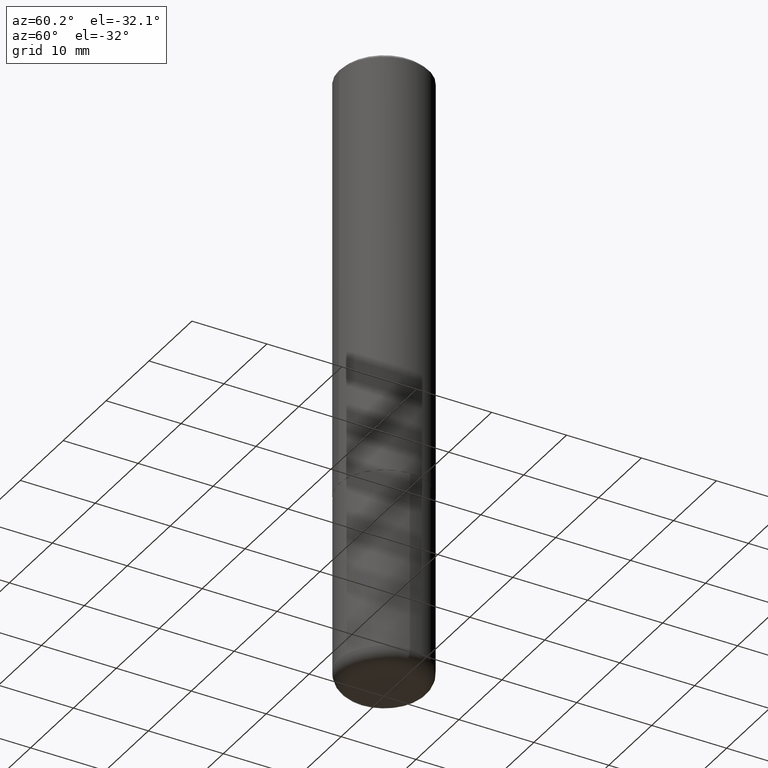
[diagram: clean part render]
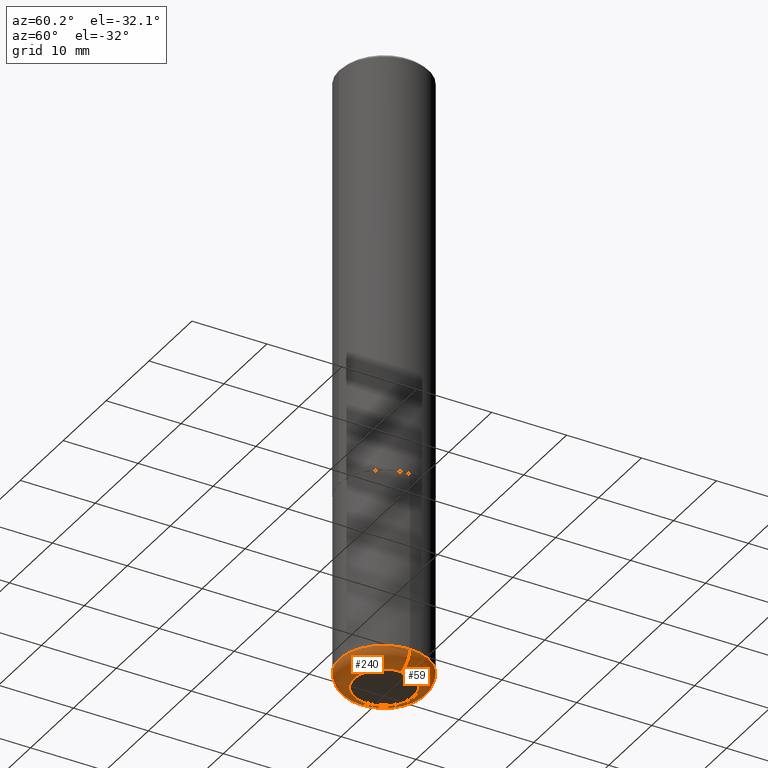
[diagram: same view with one multi-face feature highlighted, each face labeled with its STEP entity id]
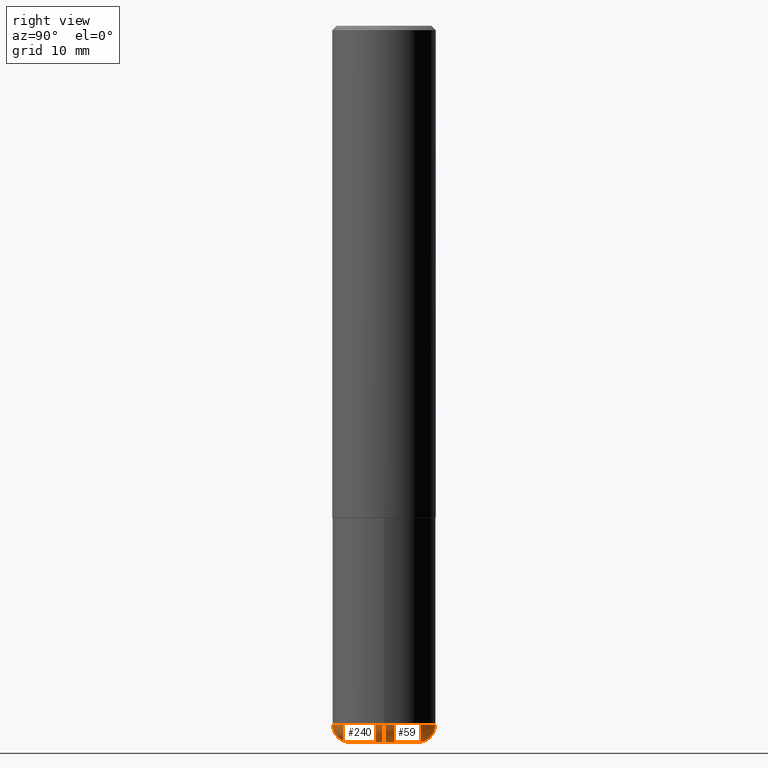
[diagram: same view with one multi-face feature highlighted, each face labeled with its STEP entity id]
A machine part, auxiliary view. The highlighted faces form ONE feature: a constant-radius fillet chain: 2 tangent blend faces with common blend radius 1.999 mm. The faces share edges in the B-rep.
A second angle (right view) of the same feature is appended — it is thin or edge-on in the first view.
Their STEP definitions:
[1] entity #240 (Torus):
#40 = CARTESIAN_POINT ( 'NONE',  ( -0.1575000000000000011, -9.873020404910514350E-15, -3.267700000000000049 ) ) ;
#44 = CARTESIAN_POINT ( 'NONE',  ( -0.2361999999999999655, -9.456032047705438285E-15, -3.189000000000000501 ) ) ;
#56 = DIRECTION ( 'NONE',  ( -2.445468806185136597E-29, 3.491481338843145583E-15, 1.000000000000000000 ) ) ;
#58 = DIRECTION ( 'NONE',  ( 1.000000000000000000, -6.982962677686266711E-15, 4.883557194083113462E-29 ) ) ;
#68 = ORIENTED_EDGE ( 'NONE', *, *, #331, .F. ) ;
#79 = EDGE_CURVE ( 'NONE', #332, #360, #106, .T. ) ;
#81 = AXIS2_PLACEMENT_3D ( 'NONE', #248, #291, #126 ) ;
#85 = AXIS2_PLACEMENT_3D ( 'NONE', #396, #311, #101 ) ;
#101 = DIRECTION ( 'NONE',  ( 1.000000000000000000, -6.982962677686275388E-15, 0.000000000000000000 ) ) ;
#103 = CARTESIAN_POINT ( 'NONE',  ( 0.1575000000000000011, -1.250893019267333313E-14, -3.267700000000000049 ) ) ;
#106 = CIRCLE ( 'NONE', #81, 0.1575000000000000011 ) ;
#126 = DIRECTION ( 'NONE',  ( 1.000000000000000000, -6.982962677686261977E-15, 0.000000000000000000 ) ) ;
#128 = ORIENTED_EDGE ( 'NONE', *, *, #207, .F. ) ;
#130 = CARTESIAN_POINT ( 'NONE',  ( -0.1575000000000000011, -1.001522918074863550E-14, -3.189000000000000501 ) ) ;
#138 = TOROIDAL_SURFACE ( 'NONE', #281, 0.1575000000000000011, 0.07869999999999995055 ) ;
#149 = ORIENTED_EDGE ( 'NONE', *, *, #79, .T. ) ;
#158 = DIRECTION ( 'NONE',  ( 7.105427357601001859E-15, 1.000000000000000000, -3.491481338843145583E-15 ) ) ;
#160 = EDGE_CURVE ( 'NONE', #360, #192, #178, .T. ) ;
#178 = CIRCLE ( 'NONE', #85, 0.07869999999999993667 ) ;
#186 = DIRECTION ( 'NONE',  ( 1.000000000000000000, -6.982962677686265133E-15, 0.000000000000000000 ) ) ;
#192 = VERTEX_POINT ( 'NONE', #357 ) ;
#207 = EDGE_CURVE ( 'NONE', #283, #192, #308, .T. ) ;
#211 = CARTESIAN_POINT ( 'NONE',  ( 7.798600022924401307E-29, -1.113433398957079310E-14, -3.189000000000000501 ) ) ;
#216 = CARTESIAN_POINT ( 'NONE',  ( 7.798600022924401307E-29, -1.113433398957079310E-14, -3.189000000000000501 ) ) ;
#239 = AXIS2_PLACEMENT_3D ( 'NONE', #130, #158, #345 ) ;
#240 = ADVANCED_FACE ( 'NONE', ( #320 ), #138, .T. ) ;
#248 = CARTESIAN_POINT ( 'NONE',  ( 7.991058417971171713E-29, -1.140911357093774644E-14, -3.267700000000000049 ) ) ;
#256 = DIRECTION ( 'NONE',  ( -2.445468806185136597E-29, 3.491481338843145583E-15, 1.000000000000000000 ) ) ;
#281 = AXIS2_PLACEMENT_3D ( 'NONE', #211, #56, #58 ) ;
#283 = VERTEX_POINT ( 'NONE', #44 ) ;
#291 = DIRECTION ( 'NONE',  ( -2.445468806185136597E-29, 3.491481338843145583E-15, 1.000000000000000000 ) ) ;
#292 = EDGE_LOOP ( 'NONE', ( #68, #149, #301, #128 ) ) ;
#301 = ORIENTED_EDGE ( 'NONE', *, *, #160, .T. ) ;
#308 = CIRCLE ( 'NONE', #416, 0.2361999999999999933 ) ;
#311 = DIRECTION ( 'NONE',  ( -6.982962677686266711E-15, -1.000000000000000000, 3.491481338843145583E-15 ) ) ;
#316 = CIRCLE ( 'NONE', #239, 0.07869999999999993667 ) ;
#320 = FACE_OUTER_BOUND ( 'NONE', #292, .T. ) ;
#331 = EDGE_CURVE ( 'NONE', #332, #283, #316, .T. ) ;
#332 = VERTEX_POINT ( 'NONE', #40 ) ;
#345 = DIRECTION ( 'NONE',  ( -1.000000000000000000, 7.105427357600997914E-15, 0.000000000000000000 ) ) ;
#357 = CARTESIAN_POINT ( 'NONE',  ( 0.2361999999999999655, -1.278370977404028805E-14, -3.189000000000000501 ) ) ;
#360 = VERTEX_POINT ( 'NONE', #103 ) ;
#396 = CARTESIAN_POINT ( 'NONE',  ( 0.1575000000000000011, -1.223415061130637979E-14, -3.189000000000000501 ) ) ;
#416 = AXIS2_PLACEMENT_3D ( 'NONE', #216, #256, #186 ) ;
[2] entity #59 (Torus):
#3 = FACE_OUTER_BOUND ( 'NONE', #381, .T. ) ;
#30 = AXIS2_PLACEMENT_3D ( 'NONE', #387, #89, #34 ) ;
#34 = DIRECTION ( 'NONE',  ( 1.000000000000000000, -6.982962677686266711E-15, 4.883557194083113462E-29 ) ) ;
#39 = ORIENTED_EDGE ( 'NONE', *, *, #369, .T. ) ;
#40 = CARTESIAN_POINT ( 'NONE',  ( -0.1575000000000000011, -9.873020404910514350E-15, -3.267700000000000049 ) ) ;
#44 = CARTESIAN_POINT ( 'NONE',  ( -0.2361999999999999655, -9.456032047705438285E-15, -3.189000000000000501 ) ) ;
#48 = CARTESIAN_POINT ( 'NONE',  ( 7.991058417971171713E-29, -1.140911357093774644E-14, -3.267700000000000049 ) ) ;
#59 = ADVANCED_FACE ( 'NONE', ( #3 ), #349, .T. ) ;
#72 = DIRECTION ( 'NONE',  ( -2.445468806185136597E-29, 3.491481338843145583E-15, 1.000000000000000000 ) ) ;
#85 = AXIS2_PLACEMENT_3D ( 'NONE', #396, #311, #101 ) ;
#89 = DIRECTION ( 'NONE',  ( -2.445468806185136597E-29, 3.491481338843145583E-15, 1.000000000000000000 ) ) ;
#101 = DIRECTION ( 'NONE',  ( 1.000000000000000000, -6.982962677686275388E-15, 0.000000000000000000 ) ) ;
#103 = CARTESIAN_POINT ( 'NONE',  ( 0.1575000000000000011, -1.250893019267333313E-14, -3.267700000000000049 ) ) ;
#116 = DIRECTION ( 'NONE',  ( 1.000000000000000000, -6.982962677686265133E-15, 0.000000000000000000 ) ) ;
#119 = ORIENTED_EDGE ( 'NONE', *, *, #120, .F. ) ;
#120 = EDGE_CURVE ( 'NONE', #192, #283, #326, .T. ) ;
#130 = CARTESIAN_POINT ( 'NONE',  ( -0.1575000000000000011, -1.001522918074863550E-14, -3.189000000000000501 ) ) ;
#158 = DIRECTION ( 'NONE',  ( 7.105427357601001859E-15, 1.000000000000000000, -3.491481338843145583E-15 ) ) ;
#160 = EDGE_CURVE ( 'NONE', #360, #192, #178, .T. ) ;
#178 = CIRCLE ( 'NONE', #85, 0.07869999999999993667 ) ;
#192 = VERTEX_POINT ( 'NONE', #357 ) ;
#197 = AXIS2_PLACEMENT_3D ( 'NONE', #48, #72, #261 ) ;
#239 = AXIS2_PLACEMENT_3D ( 'NONE', #130, #158, #345 ) ;
#255 = AXIS2_PLACEMENT_3D ( 'NONE', #280, #408, #116 ) ;
#259 = ORIENTED_EDGE ( 'NONE', *, *, #331, .T. ) ;
#261 = DIRECTION ( 'NONE',  ( 1.000000000000000000, -6.982962677686261977E-15, 0.000000000000000000 ) ) ;
#280 = CARTESIAN_POINT ( 'NONE',  ( 7.798600022924401307E-29, -1.113433398957079310E-14, -3.189000000000000501 ) ) ;
#283 = VERTEX_POINT ( 'NONE', #44 ) ;
#311 = DIRECTION ( 'NONE',  ( -6.982962677686266711E-15, -1.000000000000000000, 3.491481338843145583E-15 ) ) ;
#316 = CIRCLE ( 'NONE', #239, 0.07869999999999993667 ) ;
#326 = CIRCLE ( 'NONE', #255, 0.2361999999999999933 ) ;
#331 = EDGE_CURVE ( 'NONE', #332, #283, #316, .T. ) ;
#332 = VERTEX_POINT ( 'NONE', #40 ) ;
#335 = ORIENTED_EDGE ( 'NONE', *, *, #160, .F. ) ;
#345 = DIRECTION ( 'NONE',  ( -1.000000000000000000, 7.105427357600997914E-15, 0.000000000000000000 ) ) ;
#349 = TOROIDAL_SURFACE ( 'NONE', #30, 0.1575000000000000011, 0.07869999999999995055 ) ;
#357 = CARTESIAN_POINT ( 'NONE',  ( 0.2361999999999999655, -1.278370977404028805E-14, -3.189000000000000501 ) ) ;
#360 = VERTEX_POINT ( 'NONE', #103 ) ;
#369 = EDGE_CURVE ( 'NONE', #360, #332, #383, .T. ) ;
#381 = EDGE_LOOP ( 'NONE', ( #39, #259, #119, #335 ) ) ;
#383 = CIRCLE ( 'NONE', #197, 0.1575000000000000011 ) ;
#387 = CARTESIAN_POINT ( 'NONE',  ( 7.798600022924401307E-29, -1.113433398957079310E-14, -3.189000000000000501 ) ) ;
#396 = CARTESIAN_POINT ( 'NONE',  ( 0.1575000000000000011, -1.223415061130637979E-14, -3.189000000000000501 ) ) ;
#408 = DIRECTION ( 'NONE',  ( -2.445468806185136597E-29, 3.491481338843145583E-15, 1.000000000000000000 ) ) ;